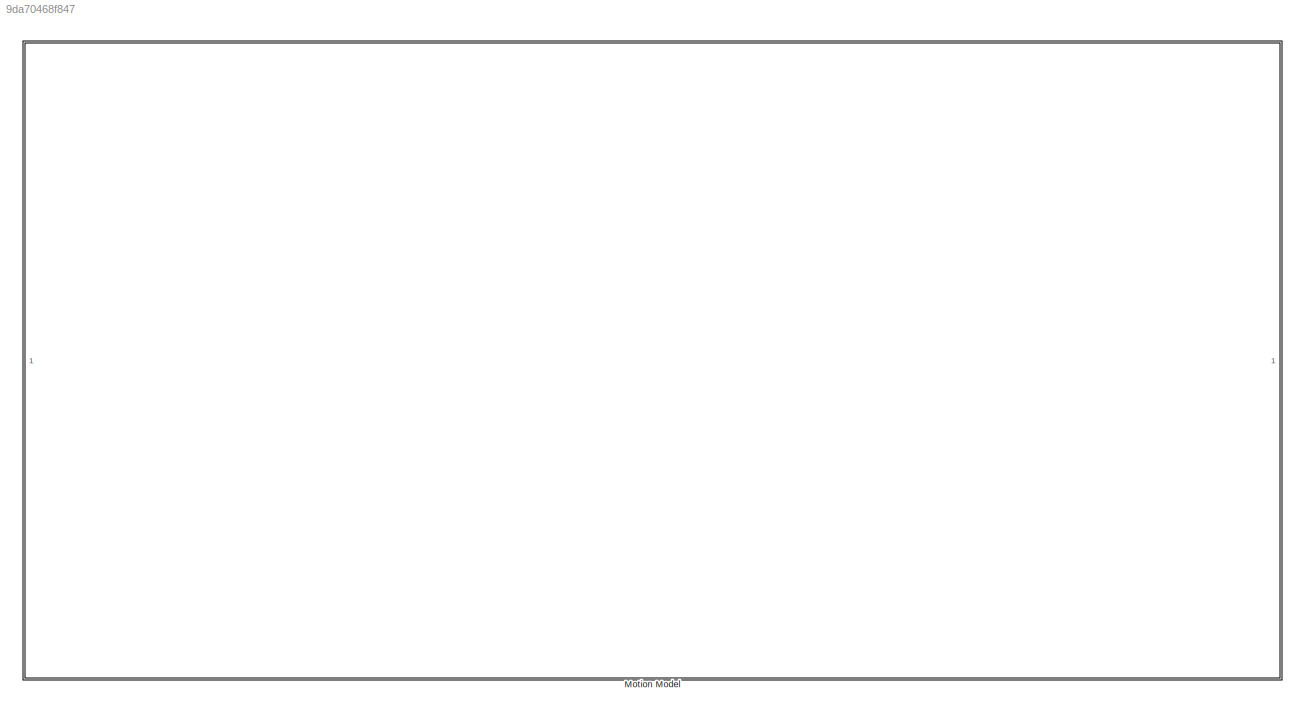
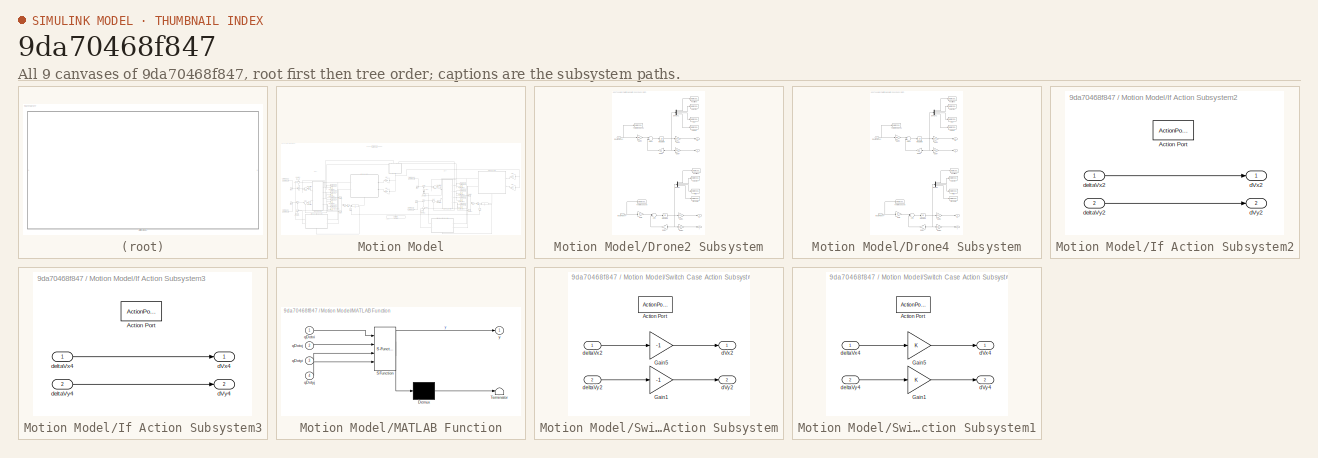
[diagram: thumbnail index - all 9 canvases of the model, root first then tree order]
MODEL slx_9da70468f847
KIND model
CONFIG AbsTol = auto
CONFIG EnableMultiTasking = off
CONFIG FixedStep = auto
CONFIG MaxStep = auto
CONFIG MinStep = auto
CONFIG RelTol = 1e-3
CONFIG SampleTimeConstraint = Unconstrained
CONFIG Solver = VariableStepAuto
CONFIG SolverName = VariableStepAuto
CONFIG StartTime = tStart 
CONFIG StopTime = tFinal
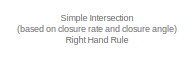
[diagram: Motion Model - part 1/6, top center region]
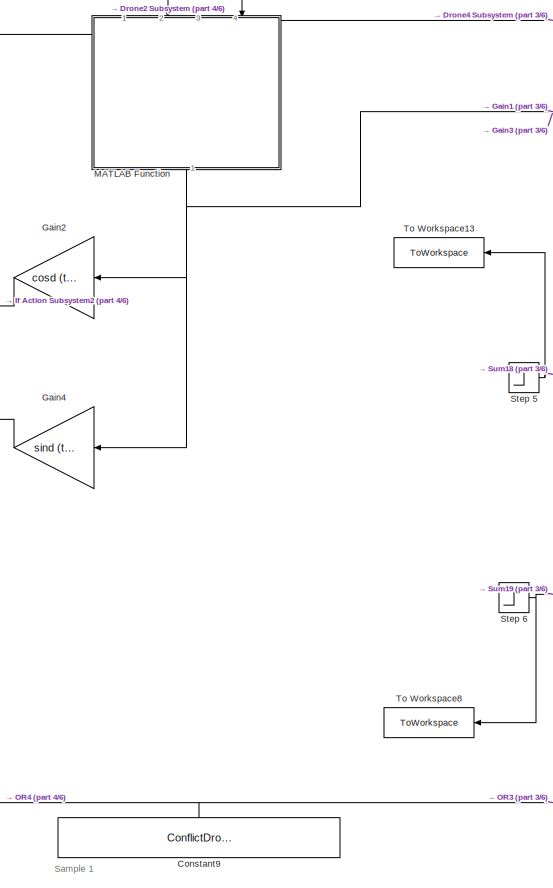
[diagram: Motion Model - part 2/6, central region]
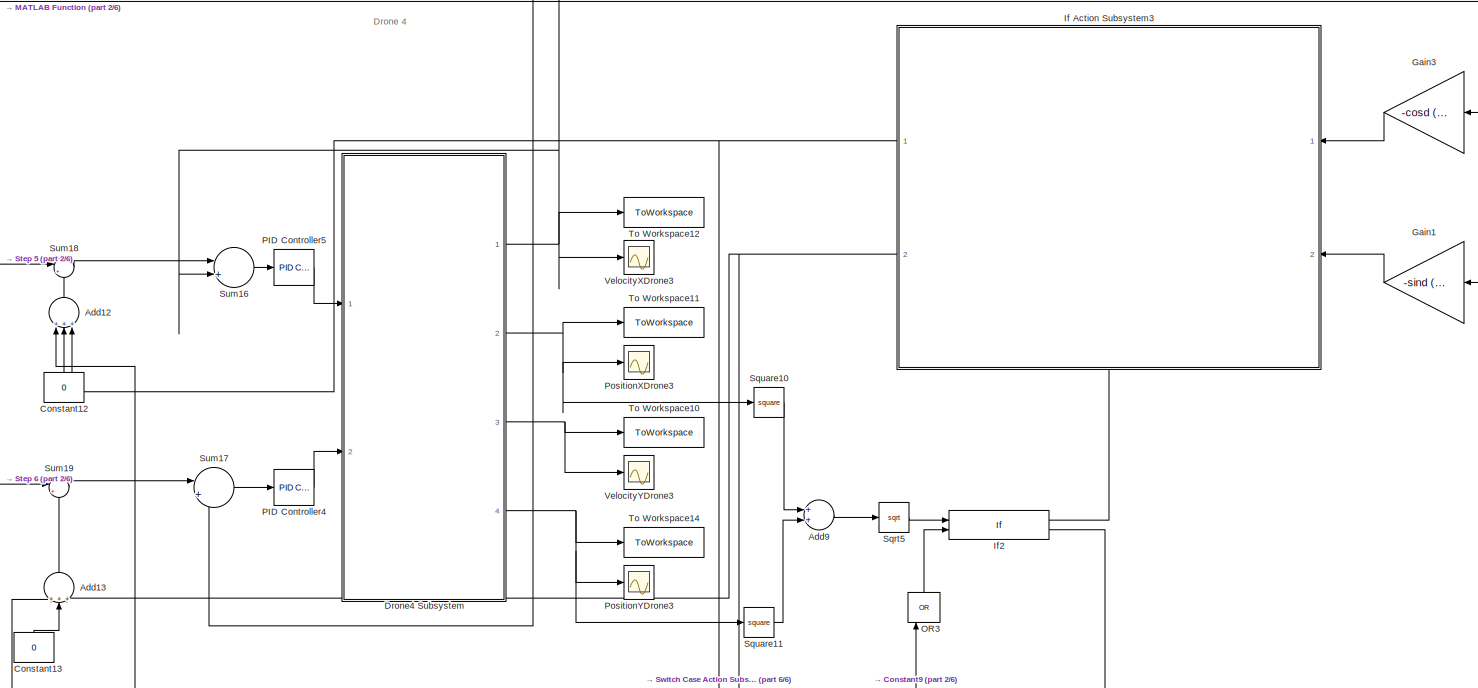
[diagram: Motion Model - part 3/6, middle right region]
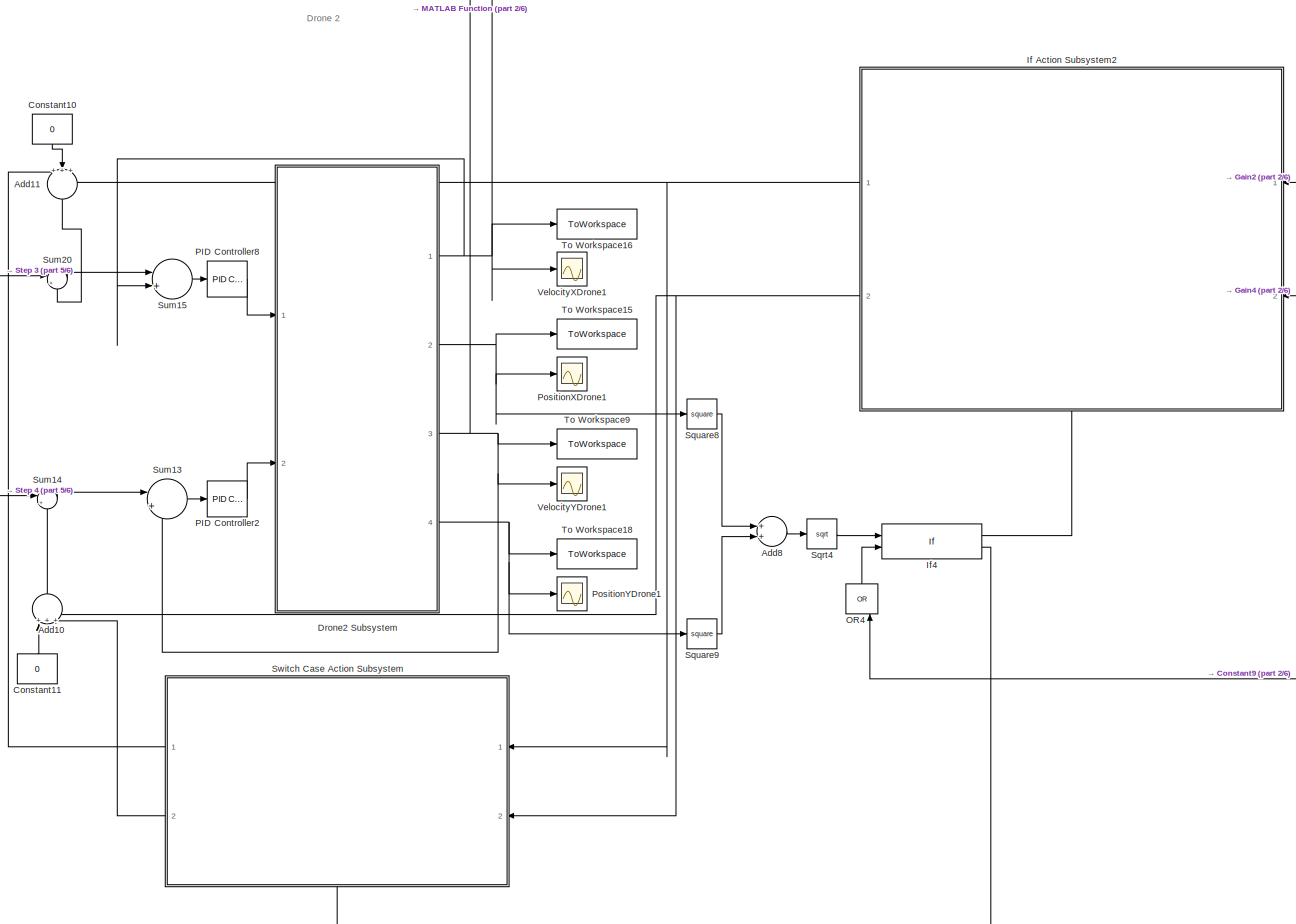
[diagram: Motion Model - part 4/6, middle left region]
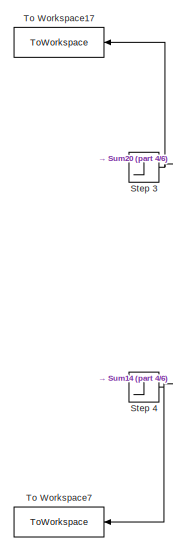
[diagram: Motion Model - part 5/6, middle left region]
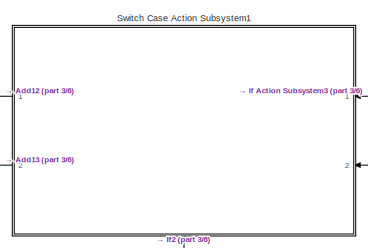
[diagram: Motion Model - part 6/6, bottom right region]
BLOCK [SubSystem] Motion Model
  Ports = []
  RequestExecContextInheritance = off
BLOCK [Sum] Motion Model/Add10
  InputSameDT = off
  Inputs = +++
  OutDataTypeStr = Inherit: Inherit via internal rule
  Ports = [3, 1]
  SaturateOnIntegerOverflow = off
BLOCK [Sum] Motion Model/Add11
  InputSameDT = off
  Inputs = +++
  OutDataTypeStr = Inherit: Inherit via internal rule
  Ports = [3, 1]
  SaturateOnIntegerOverflow = off
BLOCK [Sum] Motion Model/Add12
  InputSameDT = off
  Inputs = +++
  OutDataTypeStr = Inherit: Inherit via internal rule
  Ports = [3, 1]
  SaturateOnIntegerOverflow = off
BLOCK [Sum] Motion Model/Add13
  InputSameDT = off
  Inputs = +++
  OutDataTypeStr = Inherit: Inherit via internal rule
  Ports = [3, 1]
  SaturateOnIntegerOverflow = off
BLOCK [Sum] Motion Model/Add8
  InputSameDT = off
  OutDataTypeStr = Inherit: Inherit via internal rule
  Ports = [2, 1]
  SaturateOnIntegerOverflow = off
BLOCK [Sum] Motion Model/Add9
  InputSameDT = off
  OutDataTypeStr = Inherit: Inherit via internal rule
  Ports = [2, 1]
  SaturateOnIntegerOverflow = off
BLOCK [Constant] Motion Model/Constant10
  Value = 0
BLOCK [Constant] Motion Model/Constant11
  Value = 0
BLOCK [Constant] Motion Model/Constant12
  Value = 0
BLOCK [Constant] Motion Model/Constant13
  Value = 0
BLOCK [Constant] Motion Model/Constant9
  Value = ConflictDrone2andDrone4
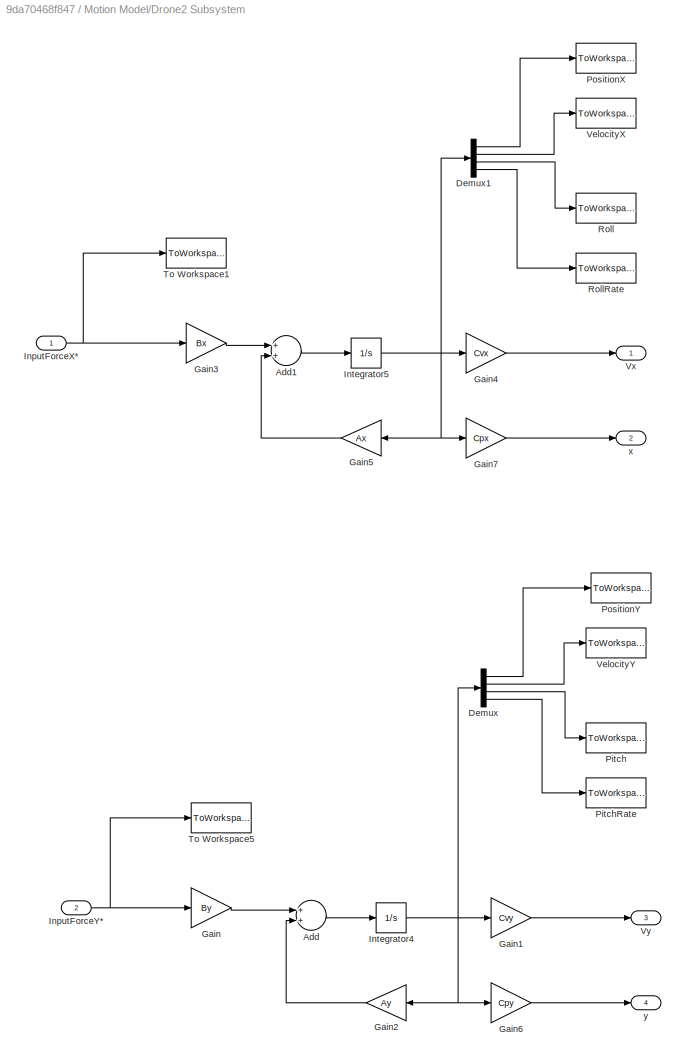
BLOCK [SubSystem] Motion Model/Drone2 Subsystem
  Ports = [2, 4]
  RequestExecContextInheritance = off
BLOCK [Sum] Motion Model/Drone2 Subsystem/Add
  InputSameDT = off
  OutDataTypeStr = Inherit: Inherit via internal rule
  Ports = [2, 1]
  SaturateOnIntegerOverflow = off
BLOCK [Sum] Motion Model/Drone2 Subsystem/Add1
  InputSameDT = off
  OutDataTypeStr = Inherit: Inherit via internal rule
  Ports = [2, 1]
  SaturateOnIntegerOverflow = off
BLOCK [Demux] Motion Model/Drone2 Subsystem/Demux
  DisplayOption = bar
  Ports = [1, 4]
BLOCK [Demux] Motion Model/Drone2 Subsystem/Demux1
  DisplayOption = bar
  Ports = [1, 4]
BLOCK [Gain] Motion Model/Drone2 Subsystem/Gain
  Gain = By
  Multiplication = Matrix(K*u)
  OutDataTypeStr = Inherit: Inherit via internal rule
  ParamDataTypeStr = Inherit: Inherit via internal rule
  SaturateOnIntegerOverflow = off
BLOCK [Gain] Motion Model/Drone2 Subsystem/Gain1
  Gain = Cvy
  Multiplication = Matrix(K*u)
  OutDataTypeStr = Inherit: Inherit via internal rule
  ParamDataTypeStr = Inherit: Inherit via internal rule
  SaturateOnIntegerOverflow = off
BLOCK [Gain] Motion Model/Drone2 Subsystem/Gain2
  Gain = Ay
  Multiplication = Matrix(K*u)
  OutDataTypeStr = Inherit: Inherit via internal rule
  ParamDataTypeStr = Inherit: Inherit via internal rule
  SaturateOnIntegerOverflow = off
BLOCK [Gain] Motion Model/Drone2 Subsystem/Gain3
  Gain = Bx
  Multiplication = Matrix(K*u)
  OutDataTypeStr = Inherit: Inherit via internal rule
  ParamDataTypeStr = Inherit: Inherit via internal rule
  SaturateOnIntegerOverflow = off
BLOCK [Gain] Motion Model/Drone2 Subsystem/Gain4
  Gain = Cvx
  Multiplication = Matrix(K*u)
  OutDataTypeStr = Inherit: Inherit via internal rule
  ParamDataTypeStr = Inherit: Inherit via internal rule
  SaturateOnIntegerOverflow = off
BLOCK [Gain] Motion Model/Drone2 Subsystem/Gain5
  Gain = Ax
  Multiplication = Matrix(K*u)
  OutDataTypeStr = Inherit: Inherit via internal rule
  ParamDataTypeStr = Inherit: Inherit via internal rule
  SaturateOnIntegerOverflow = off
BLOCK [Gain] Motion Model/Drone2 Subsystem/Gain6
  Gain = Cpy
  Multiplication = Matrix(K*u)
  OutDataTypeStr = Inherit: Inherit via internal rule
  ParamDataTypeStr = Inherit: Inherit via internal rule
  SaturateOnIntegerOverflow = off
BLOCK [Gain] Motion Model/Drone2 Subsystem/Gain7
  Gain = Cpx
  Multiplication = Matrix(K*u)
  OutDataTypeStr = Inherit: Inherit via internal rule
  ParamDataTypeStr = Inherit: Inherit via internal rule
  SaturateOnIntegerOverflow = off
BLOCK [Inport] Motion Model/Drone2 Subsystem/InputForceX*
  IconDisplay = Port number
BLOCK [Inport] Motion Model/Drone2 Subsystem/InputForceY* 
  IconDisplay = Port number
  Port = 2
BLOCK [Integrator] Motion Model/Drone2 Subsystem/Integrator4
  InitialCondition = Y20
  Ports = [1, 1]
BLOCK [Integrator] Motion Model/Drone2 Subsystem/Integrator5
  InitialCondition = X20
  Ports = [1, 1]
BLOCK [ToWorkspace] Motion Model/Drone2 Subsystem/Pitch
  FixptAsFi = on
  MaxDataPoints = inf
  Ports = [1]
  SampleTime = -1
  Save2DSignal = 3-D array (concatenate along third dimension)
  VariableName = Theta2
BLOCK [ToWorkspace] Motion Model/Drone2 Subsystem/PitchRate
  FixptAsFi = on
  MaxDataPoints = inf
  Ports = [1]
  SampleTime = -1
  Save2DSignal = 3-D array (concatenate along third dimension)
  VariableName = ThetaDot2
BLOCK [ToWorkspace] Motion Model/Drone2 Subsystem/PositionX
  FixptAsFi = on
  MaxDataPoints = inf
  Ports = [1]
  SampleTime = -1
  Save2DSignal = 3-D array (concatenate along third dimension)
  VariableName = x2
BLOCK [ToWorkspace] Motion Model/Drone2 Subsystem/PositionY
  FixptAsFi = on
  MaxDataPoints = inf
  Ports = [1]
  SampleTime = -1
  Save2DSignal = 3-D array (concatenate along third dimension)
  VariableName = y2
BLOCK [ToWorkspace] Motion Model/Drone2 Subsystem/Roll
  FixptAsFi = on
  MaxDataPoints = inf
  Ports = [1]
  SampleTime = -1
  Save2DSignal = 3-D array (concatenate along third dimension)
  VariableName = Psi2
BLOCK [ToWorkspace] Motion Model/Drone2 Subsystem/RollRate
  FixptAsFi = on
  MaxDataPoints = inf
  Ports = [1]
  SampleTime = -1
  Save2DSignal = 3-D array (concatenate along third dimension)
  VariableName = PsiDot2
BLOCK [ToWorkspace] Motion Model/Drone2 Subsystem/To Workspace1
  FixptAsFi = on
  MaxDataPoints = inf
  Ports = [1]
  SampleTime = -1
  Save2DSignal = 3-D array (concatenate along third dimension)
  VariableName = RollReference2
BLOCK [ToWorkspace] Motion Model/Drone2 Subsystem/To Workspace5
  FixptAsFi = on
  MaxDataPoints = inf
  Ports = [1]
  SampleTime = -1
  Save2DSignal = 3-D array (concatenate along third dimension)
  VariableName = PitchReference2
BLOCK [ToWorkspace] Motion Model/Drone2 Subsystem/VelocityX
  FixptAsFi = on
  MaxDataPoints = inf
  Ports = [1]
  SampleTime = -1
  Save2DSignal = 3-D array (concatenate along third dimension)
  VariableName = vx2
BLOCK [ToWorkspace] Motion Model/Drone2 Subsystem/VelocityY
  FixptAsFi = on
  MaxDataPoints = inf
  Ports = [1]
  SampleTime = -1
  Save2DSignal = 3-D array (concatenate along third dimension)
  VariableName = vy2
BLOCK [Outport] Motion Model/Drone2 Subsystem/Vx
  IconDisplay = Port number
BLOCK [Outport] Motion Model/Drone2 Subsystem/Vy
  IconDisplay = Port number
  Port = 3
BLOCK [Outport] Motion Model/Drone2 Subsystem/x
  IconDisplay = Port number
  Port = 2
BLOCK [Outport] Motion Model/Drone2 Subsystem/y
  IconDisplay = Port number
  Port = 4
BLOCK [SubSystem] Motion Model/Drone4 Subsystem
  Ports = [2, 4]
  RequestExecContextInheritance = off
BLOCK [Sum] Motion Model/Drone4 Subsystem/Add
  InputSameDT = off
  OutDataTypeStr = Inherit: Inherit via internal rule
  Ports = [2, 1]
  SaturateOnIntegerOverflow = off
BLOCK [Sum] Motion Model/Drone4 Subsystem/Add1
  InputSameDT = off
  OutDataTypeStr = Inherit: Inherit via internal rule
  Ports = [2, 1]
  SaturateOnIntegerOverflow = off
BLOCK [Demux] Motion Model/Drone4 Subsystem/Demux
  DisplayOption = bar
  Ports = [1, 4]
BLOCK [Demux] Motion Model/Drone4 Subsystem/Demux1
  DisplayOption = bar
  Ports = [1, 4]
BLOCK [Gain] Motion Model/Drone4 Subsystem/Gain
  Gain = By
  Multiplication = Matrix(K*u)
  OutDataTypeStr = Inherit: Inherit via internal rule
  ParamDataTypeStr = Inherit: Inherit via internal rule
  SaturateOnIntegerOverflow = off
BLOCK [Gain] Motion Model/Drone4 Subsystem/Gain1
  Gain = Cvy
  Multiplication = Matrix(K*u)
  OutDataTypeStr = Inherit: Inherit via internal rule
  ParamDataTypeStr = Inherit: Inherit via internal rule
  SaturateOnIntegerOverflow = off
BLOCK [Gain] Motion Model/Drone4 Subsystem/Gain2
  Gain = Ay
  Multiplication = Matrix(K*u)
  OutDataTypeStr = Inherit: Inherit via internal rule
  ParamDataTypeStr = Inherit: Inherit via internal rule
  SaturateOnIntegerOverflow = off
BLOCK [Gain] Motion Model/Drone4 Subsystem/Gain3
  Gain = Bx
  Multiplication = Matrix(K*u)
  OutDataTypeStr = Inherit: Inherit via internal rule
  ParamDataTypeStr = Inherit: Inherit via internal rule
  SaturateOnIntegerOverflow = off
BLOCK [Gain] Motion Model/Drone4 Subsystem/Gain4
  Gain = Cvx
  Multiplication = Matrix(K*u)
  OutDataTypeStr = Inherit: Inherit via internal rule
  ParamDataTypeStr = Inherit: Inherit via internal rule
  SaturateOnIntegerOverflow = off
BLOCK [Gain] Motion Model/Drone4 Subsystem/Gain5
  Gain = Ax
  Multiplication = Matrix(K*u)
  OutDataTypeStr = Inherit: Inherit via internal rule
  ParamDataTypeStr = Inherit: Inherit via internal rule
  SaturateOnIntegerOverflow = off
BLOCK [Gain] Motion Model/Drone4 Subsystem/Gain6
  Gain = Cpy
  Multiplication = Matrix(K*u)
  OutDataTypeStr = Inherit: Inherit via internal rule
  ParamDataTypeStr = Inherit: Inherit via internal rule
  SaturateOnIntegerOverflow = off
BLOCK [Gain] Motion Model/Drone4 Subsystem/Gain7
  Gain = Cpx
  Multiplication = Matrix(K*u)
  OutDataTypeStr = Inherit: Inherit via internal rule
  ParamDataTypeStr = Inherit: Inherit via internal rule
  SaturateOnIntegerOverflow = off
BLOCK [Inport] Motion Model/Drone4 Subsystem/InputForceX*
  IconDisplay = Port number
BLOCK [Inport] Motion Model/Drone4 Subsystem/InputForceY* 
  IconDisplay = Port number
  Port = 2
BLOCK [Integrator] Motion Model/Drone4 Subsystem/Integrator4
  InitialCondition = Y40
  Ports = [1, 1]
BLOCK [Integrator] Motion Model/Drone4 Subsystem/Integrator5
  InitialCondition = X40
  Ports = [1, 1]
BLOCK [ToWorkspace] Motion Model/Drone4 Subsystem/Pitch
  FixptAsFi = on
  MaxDataPoints = inf
  Ports = [1]
  SampleTime = -1
  Save2DSignal = 3-D array (concatenate along third dimension)
  VariableName = Theta
BLOCK [ToWorkspace] Motion Model/Drone4 Subsystem/PitchRate
  FixptAsFi = on
  MaxDataPoints = inf
  Ports = [1]
  SampleTime = -1
  Save2DSignal = 3-D array (concatenate along third dimension)
  VariableName = ThetaDot
BLOCK [ToWorkspace] Motion Model/Drone4 Subsystem/PositionX
  FixptAsFi = on
  MaxDataPoints = inf
  Ports = [1]
  SampleTime = -1
  Save2DSignal = 3-D array (concatenate along third dimension)
  VariableName = x
BLOCK [ToWorkspace] Motion Model/Drone4 Subsystem/PositionY
  FixptAsFi = on
  MaxDataPoints = inf
  Ports = [1]
  SampleTime = -1
  Save2DSignal = 3-D array (concatenate along third dimension)
  VariableName = y
BLOCK [ToWorkspace] Motion Model/Drone4 Subsystem/Roll
  FixptAsFi = on
  MaxDataPoints = inf
  Ports = [1]
  SampleTime = -1
  Save2DSignal = 3-D array (concatenate along third dimension)
  VariableName = Psi
BLOCK [ToWorkspace] Motion Model/Drone4 Subsystem/RollRate
  FixptAsFi = on
  MaxDataPoints = inf
  Ports = [1]
  SampleTime = -1
  Save2DSignal = 3-D array (concatenate along third dimension)
  VariableName = PsiDot
BLOCK [ToWorkspace] Motion Model/Drone4 Subsystem/To Workspace1
  FixptAsFi = on
  MaxDataPoints = inf
  Ports = [1]
  SampleTime = -1
  Save2DSignal = 3-D array (concatenate along third dimension)
  VariableName = RollReference
BLOCK [ToWorkspace] Motion Model/Drone4 Subsystem/To Workspace5
  FixptAsFi = on
  MaxDataPoints = inf
  Ports = [1]
  SampleTime = -1
  Save2DSignal = 3-D array (concatenate along third dimension)
  VariableName = PitchReference
BLOCK [ToWorkspace] Motion Model/Drone4 Subsystem/VelocityX
  FixptAsFi = on
  MaxDataPoints = inf
  Ports = [1]
  SampleTime = -1
  Save2DSignal = 3-D array (concatenate along third dimension)
  VariableName = vx
BLOCK [ToWorkspace] Motion Model/Drone4 Subsystem/VelocityY
  FixptAsFi = on
  MaxDataPoints = inf
  Ports = [1]
  SampleTime = -1
  Save2DSignal = 3-D array (concatenate along third dimension)
  VariableName = vy
BLOCK [Outport] Motion Model/Drone4 Subsystem/Vx
  IconDisplay = Port number
BLOCK [Outport] Motion Model/Drone4 Subsystem/Vy
  IconDisplay = Port number
  Port = 3
BLOCK [Outport] Motion Model/Drone4 Subsystem/x
  IconDisplay = Port number
  Port = 2
BLOCK [Outport] Motion Model/Drone4 Subsystem/y
  IconDisplay = Port number
  Port = 4
BLOCK [Gain] Motion Model/Gain1
  Gain = -sind (theta4)
  OutDataTypeStr = Inherit: Inherit via internal rule
  ParamDataTypeStr = Inherit: Inherit via internal rule
  SaturateOnIntegerOverflow = off
BLOCK [Gain] Motion Model/Gain2
  Gain = cosd (theta2)
  OutDataTypeStr = Inherit: Inherit via internal rule
  ParamDataTypeStr = Inherit: Inherit via internal rule
  SaturateOnIntegerOverflow = off
BLOCK [Gain] Motion Model/Gain3
  Gain = -cosd (theta4)
  OutDataTypeStr = Inherit: Inherit via internal rule
  ParamDataTypeStr = Inherit: Inherit via internal rule
  SaturateOnIntegerOverflow = off
BLOCK [Gain] Motion Model/Gain4
  Gain = sind (theta2)
  OutDataTypeStr = Inherit: Inherit via internal rule
  ParamDataTypeStr = Inherit: Inherit via internal rule
  SaturateOnIntegerOverflow = off
BLOCK [SubSystem] Motion Model/If Action Subsystem2
  Ports = [2, 2, 0, 0, 0, 0, 0, 1]
  RequestExecContextInheritance = off
  TreatAsAtomicUnit = on
BLOCK [ActionPort] Motion Model/If Action Subsystem2/Action Port
  ActionType = then
BLOCK [Outport] Motion Model/If Action Subsystem2/dVx2
  IconDisplay = Port number
BLOCK [Outport] Motion Model/If Action Subsystem2/dVy2
  IconDisplay = Port number
  Port = 2
BLOCK [Inport] Motion Model/If Action Subsystem2/deltaVx2
  IconDisplay = Port number
BLOCK [Inport] Motion Model/If Action Subsystem2/deltaVy2
  IconDisplay = Port number
  Port = 2
BLOCK [SubSystem] Motion Model/If Action Subsystem3
  Ports = [2, 2, 0, 0, 0, 0, 0, 1]
  RequestExecContextInheritance = off
  TreatAsAtomicUnit = on
BLOCK [ActionPort] Motion Model/If Action Subsystem3/Action Port
  ActionType = then
BLOCK [Outport] Motion Model/If Action Subsystem3/dVx4
  IconDisplay = Port number
BLOCK [Outport] Motion Model/If Action Subsystem3/dVy4
  IconDisplay = Port number
  Port = 2
BLOCK [Inport] Motion Model/If Action Subsystem3/deltaVx4
  IconDisplay = Port number
BLOCK [Inport] Motion Model/If Action Subsystem3/deltaVy4
  IconDisplay = Port number
  Port = 2
BLOCK [If] Motion Model/If2
  ElseIfExpressions = (u1 > R)&(u2 == 1)
  IfExpression = (u1 <= R)&(u2 == 1)
  NumInputs = 2
  Ports = [2, 2]
  ShowElse = off
BLOCK [If] Motion Model/If4
  ElseIfExpressions = (u1 > R)&(u2 == 1)
  IfExpression = (u1 <= R)&(u2 == 1)
  NumInputs = 2
  Ports = [2, 2]
  ShowElse = off
BLOCK [SubSystem] Motion Model/MATLAB Function
  ErrorFcn = Stateflow.Translate.translate
  PermitHierarchicalResolution = ExplicitOnly
  Ports = [4, 1]
  RequestExecContextInheritance = off
  SFBlockType = MATLAB Function
  TreatAsAtomicUnit = on
BLOCK [Demux] Motion Model/MATLAB Function/ Demux 
  Outputs = 1
  Ports = [1, 1]
BLOCK [S-Function] Motion Model/MATLAB Function/ SFunction 
  EnableBusSupport = on
  FunctionName = sf_sfun
  PortCounts = [4 2]
  Ports = [4, 2]
  SFcnIsStateOwnerBlock = off
  SFunctionDeploymentMode = off
  Tag = Stateflow S-Function NetworkModelSimpleIntersectionCRCA 2
BLOCK [Terminator] Motion Model/MATLAB Function/ Terminator 
BLOCK [Inport] Motion Model/MATLAB Function/qDotxi
  IconDisplay = Port number
BLOCK [Inport] Motion Model/MATLAB Function/qDotxj
  IconDisplay = Port number
  Port = 2
BLOCK [Inport] Motion Model/MATLAB Function/qDotyi
  IconDisplay = Port number
  Port = 3
BLOCK [Inport] Motion Model/MATLAB Function/qDotyj
  IconDisplay = Port number
  Port = 4
BLOCK [Outport] Motion Model/MATLAB Function/y
  IconDisplay = Port number
BLOCK [Logic] Motion Model/OR3
  AllPortsSameDT = off
  IconShape = distinctive
  Inputs = 3
  Operator = OR
  OutDataTypeStr = 'double'
  Ports = [3, 1]
BLOCK [Logic] Motion Model/OR4
  AllPortsSameDT = off
  IconShape = distinctive
  Inputs = 3
  Operator = OR
  OutDataTypeStr = 'double'
  Ports = [3, 1]
BLOCK [Reference] Motion Model/PID Controller2  REF=simulink/Continuous/PID Controller
  Ports = [1, 1]
  SourceBlock = simulink/Continuous/PID Controller
  SourceProductBaseCode = SL
  SourceProductName = Simulink
  SourceType = PID 1dof
BLOCK [Reference] Motion Model/PID Controller4  REF=simulink/Continuous/PID Controller
  Ports = [1, 1]
  SourceBlock = simulink/Continuous/PID Controller
  SourceProductBaseCode = SL
  SourceProductName = Simulink
  SourceType = PID 1dof
BLOCK [Reference] Motion Model/PID Controller5  REF=simulink/Continuous/PID Controller
  Ports = [1, 1]
  SourceBlock = simulink/Continuous/PID Controller
  SourceProductBaseCode = SL
  SourceProductName = Simulink
  SourceType = PID 1dof
BLOCK [Reference] Motion Model/PID Controller8  REF=simulink/Continuous/PID Controller
  Ports = [1, 1]
  SourceBlock = simulink/Continuous/PID Controller
  SourceProductBaseCode = SL
  SourceProductName = Simulink
  SourceType = PID 1dof
BLOCK [Scope] Motion Model/PositionXDrone1
  Floating = off
  NumInputPorts = 1
  Ports = [1]
  ScopeSpecificationString = Simulink.scopes.TimeScopeBlockCfg('CurrentConfiguration', extmgr.ConfigurationSet(extmgr.Configuration('Core','General UI',true),extmgr.Configuration('Core','Source UI',true),extmgr.Configuration('Sources','WiredSimulink',true,'DataLoggingVariableName','ScopeData1'),extmgr.Configuration('Visuals','Time Domain',true,'SerializedDisplays',{struct('MinYLimReal','-13.93778','MaxYLimReal','12.65975','YL...<+1455ch>
BLOCK [Scope] Motion Model/PositionXDrone3
  Floating = off
  NumInputPorts = 1
  Ports = [1]
  ScopeSpecificationString = Simulink.scopes.TimeScopeBlockCfg('CurrentConfiguration', extmgr.ConfigurationSet(extmgr.Configuration('Core','General UI',true),extmgr.Configuration('Core','Source UI',true),extmgr.Configuration('Sources','WiredSimulink',true,'DataLoggingVariableName','ScopeData2'),extmgr.Configuration('Visuals','Time Domain',true,'SerializedDisplays',{struct('MinYLimReal','-23.95767','MaxYLimReal','115.61905','Y...<+1459ch>
BLOCK [Scope] Motion Model/PositionYDrone1
  Floating = off
  NumInputPorts = 1
  Ports = [1]
  ScopeSpecificationString = Simulink.scopes.TimeScopeBlockCfg('CurrentConfiguration', extmgr.ConfigurationSet(extmgr.Configuration('Core','General UI',true),extmgr.Configuration('Core','Source UI',true),extmgr.Configuration('Sources','WiredSimulink',true,'DataLoggingVariableName','ScopeData3'),extmgr.Configuration('Visuals','Time Domain',true,'SerializedDisplays',{struct('MinYLimReal','-12488.44039','MaxYLimReal','112495.937...<+1759ch>
BLOCK [Scope] Motion Model/PositionYDrone3
  Floating = off
  NumInputPorts = 1
  Ports = [1]
  ScopeSpecificationString = Simulink.scopes.TimeScopeBlockCfg('CurrentConfiguration', extmgr.ConfigurationSet(extmgr.Configuration('Core','General UI',true),extmgr.Configuration('Core','Source UI',true),extmgr.Configuration('Sources','WiredSimulink',true,'DataLoggingVariableName','ScopeData4'),extmgr.Configuration('Visuals','Time Domain',true,'SerializedDisplays',{struct('MinYLimReal','-115.61905','MaxYLimReal','23.95767','Y...<+1461ch>
BLOCK [Sqrt] Motion Model/Sqrt4
BLOCK [Sqrt] Motion Model/Sqrt5
BLOCK [Math] Motion Model/Square10
  Operator = square
  Ports = [1, 1]
BLOCK [Math] Motion Model/Square11
  Operator = square
  Ports = [1, 1]
BLOCK [Math] Motion Model/Square8
  Operator = square
  Ports = [1, 1]
BLOCK [Math] Motion Model/Square9
  Operator = square
  Ports = [1, 1]
BLOCK [Step] Motion Model/Step 3
  After = VelocityStarX2
  SampleTime = 0
  Time = 0
BLOCK [Step] Motion Model/Step 4
  After = VelocityStarY2
  SampleTime = 0
  Time = 0
BLOCK [Step] Motion Model/Step 5
  After = VelocityStarX4
  SampleTime = 0
  Time = 0
BLOCK [Step] Motion Model/Step 6
  After = VelocityStarY4
  SampleTime = 0
  Time = 0
BLOCK [Sum] Motion Model/Sum13
  IconShape = round
  InputSameDT = off
  Inputs = |+-
  OutDataTypeStr = Inherit: Inherit via internal rule
  Ports = [2, 1]
  SaturateOnIntegerOverflow = off
BLOCK [Sum] Motion Model/Sum14
  IconShape = round
  InputSameDT = off
  Inputs = |+-
  OutDataTypeStr = Inherit: Inherit via internal rule
  Ports = [2, 1]
  SaturateOnIntegerOverflow = off
BLOCK [Sum] Motion Model/Sum15
  IconShape = round
  InputSameDT = off
  Inputs = |+-
  OutDataTypeStr = Inherit: Inherit via internal rule
  Ports = [2, 1]
  SaturateOnIntegerOverflow = off
BLOCK [Sum] Motion Model/Sum16
  IconShape = round
  InputSameDT = off
  Inputs = |+-
  OutDataTypeStr = Inherit: Inherit via internal rule
  Ports = [2, 1]
  SaturateOnIntegerOverflow = off
BLOCK [Sum] Motion Model/Sum17
  IconShape = round
  InputSameDT = off
  Inputs = |+-
  OutDataTypeStr = Inherit: Inherit via internal rule
  Ports = [2, 1]
  SaturateOnIntegerOverflow = off
BLOCK [Sum] Motion Model/Sum18
  IconShape = round
  InputSameDT = off
  Inputs = |+-
  OutDataTypeStr = Inherit: Inherit via internal rule
  Ports = [2, 1]
  SaturateOnIntegerOverflow = off
BLOCK [Sum] Motion Model/Sum19
  IconShape = round
  InputSameDT = off
  Inputs = |+-
  OutDataTypeStr = Inherit: Inherit via internal rule
  Ports = [2, 1]
  SaturateOnIntegerOverflow = off
BLOCK [Sum] Motion Model/Sum20
  IconShape = round
  InputSameDT = off
  Inputs = |+-
  OutDataTypeStr = Inherit: Inherit via internal rule
  Ports = [2, 1]
  SaturateOnIntegerOverflow = off
BLOCK [SubSystem] Motion Model/Switch Case Action Subsystem
  Ports = [2, 2, 0, 0, 0, 0, 0, 1]
  RequestExecContextInheritance = off
  TreatAsAtomicUnit = on
BLOCK [ActionPort] Motion Model/Switch Case Action Subsystem/Action Port
  ActionType = elseif
BLOCK [Gain] Motion Model/Switch Case Action Subsystem/Gain1
  Gain = -1
  OutDataTypeStr = Inherit: Inherit via internal rule
  ParamDataTypeStr = Inherit: Inherit via internal rule
  SaturateOnIntegerOverflow = off
BLOCK [Gain] Motion Model/Switch Case Action Subsystem/Gain5
  Gain = -1
  OutDataTypeStr = Inherit: Inherit via internal rule
  ParamDataTypeStr = Inherit: Inherit via internal rule
  SaturateOnIntegerOverflow = off
BLOCK [Outport] Motion Model/Switch Case Action Subsystem/dVx2
  IconDisplay = Port number
BLOCK [Outport] Motion Model/Switch Case Action Subsystem/dVy2
  IconDisplay = Port number
  Port = 2
BLOCK [Inport] Motion Model/Switch Case Action Subsystem/deltaVx2
  IconDisplay = Port number
BLOCK [Inport] Motion Model/Switch Case Action Subsystem/deltaVy2
  IconDisplay = Port number
  Port = 2
BLOCK [SubSystem] Motion Model/Switch Case Action Subsystem1
  Ports = [2, 2, 0, 0, 0, 0, 0, 1]
  RequestExecContextInheritance = off
  TreatAsAtomicUnit = on
BLOCK [ActionPort] Motion Model/Switch Case Action Subsystem1/Action Port
  ActionType = elseif
BLOCK [Gain] Motion Model/Switch Case Action Subsystem1/Gain1
  OutDataTypeStr = Inherit: Inherit via internal rule
  ParamDataTypeStr = Inherit: Inherit via internal rule
  SaturateOnIntegerOverflow = off
BLOCK [Gain] Motion Model/Switch Case Action Subsystem1/Gain5
  OutDataTypeStr = Inherit: Inherit via internal rule
  ParamDataTypeStr = Inherit: Inherit via internal rule
  SaturateOnIntegerOverflow = off
BLOCK [Outport] Motion Model/Switch Case Action Subsystem1/dVx4
  IconDisplay = Port number
BLOCK [Outport] Motion Model/Switch Case Action Subsystem1/dVy4
  IconDisplay = Port number
  Port = 2
BLOCK [Inport] Motion Model/Switch Case Action Subsystem1/deltaVx4
  IconDisplay = Port number
BLOCK [Inport] Motion Model/Switch Case Action Subsystem1/deltaVy4
  IconDisplay = Port number
  Port = 2
BLOCK [ToWorkspace] Motion Model/To Workspace10
  FixptAsFi = on
  MaxDataPoints = inf
  Ports = [1]
  SampleTime = -1
  Save2DSignal = 3-D array (concatenate along third dimension)
  VariableName = VelocityYDrone4
BLOCK [ToWorkspace] Motion Model/To Workspace11
  FixptAsFi = on
  MaxDataPoints = inf
  Ports = [1]
  SampleTime = -1
  Save2DSignal = 3-D array (concatenate along third dimension)
  VariableName = PositionXDrone4
BLOCK [ToWorkspace] Motion Model/To Workspace12
  FixptAsFi = on
  MaxDataPoints = inf
  Ports = [1]
  SampleTime = -1
  Save2DSignal = 3-D array (concatenate along third dimension)
  VariableName = VelocityXDrone4
BLOCK [ToWorkspace] Motion Model/To Workspace13
  FixptAsFi = on
  MaxDataPoints = inf
  Ports = [1]
  SampleTime = -1
  Save2DSignal = 3-D array (concatenate along third dimension)
  VariableName = VelocityStarX4
BLOCK [ToWorkspace] Motion Model/To Workspace14
  FixptAsFi = on
  MaxDataPoints = inf
  Ports = [1]
  SampleTime = -1
  Save2DSignal = 3-D array (concatenate along third dimension)
  VariableName = PositionYDrone4
BLOCK [ToWorkspace] Motion Model/To Workspace15
  FixptAsFi = on
  MaxDataPoints = inf
  Ports = [1]
  SampleTime = -1
  Save2DSignal = 3-D array (concatenate along third dimension)
  VariableName = PositionXDrone2
BLOCK [ToWorkspace] Motion Model/To Workspace16
  FixptAsFi = on
  MaxDataPoints = inf
  Ports = [1]
  SampleTime = -1
  Save2DSignal = 3-D array (concatenate along third dimension)
  VariableName = VelocityXDrone2
BLOCK [ToWorkspace] Motion Model/To Workspace17
  FixptAsFi = on
  MaxDataPoints = inf
  Ports = [1]
  SampleTime = -1
  Save2DSignal = 3-D array (concatenate along third dimension)
  VariableName = VelocityStarX2
BLOCK [ToWorkspace] Motion Model/To Workspace18
  FixptAsFi = on
  MaxDataPoints = inf
  Ports = [1]
  SampleTime = -1
  Save2DSignal = 3-D array (concatenate along third dimension)
  VariableName = PositionYDrone2
BLOCK [ToWorkspace] Motion Model/To Workspace7
  FixptAsFi = on
  MaxDataPoints = inf
  Ports = [1]
  SampleTime = -1
  Save2DSignal = 3-D array (concatenate along third dimension)
  VariableName = VelocityStarY2
BLOCK [ToWorkspace] Motion Model/To Workspace8
  FixptAsFi = on
  MaxDataPoints = inf
  Ports = [1]
  SampleTime = -1
  Save2DSignal = 3-D array (concatenate along third dimension)
  VariableName = VelocityStarY4
BLOCK [ToWorkspace] Motion Model/To Workspace9
  FixptAsFi = on
  MaxDataPoints = inf
  Ports = [1]
  SampleTime = -1
  Save2DSignal = 3-D array (concatenate along third dimension)
  VariableName = VelocityYDrone2
BLOCK [Scope] Motion Model/VelocityXDrone1
  Floating = off
  NumInputPorts = 1
  Ports = [1]
  ScopeSpecificationString = Simulink.scopes.TimeScopeBlockCfg('CurrentConfiguration', extmgr.ConfigurationSet(extmgr.Configuration('Core','General UI',true),extmgr.Configuration('Core','Source UI',true),extmgr.Configuration('Sources','WiredSimulink',true,'DataLoggingVariableName','ScopeData5'),extmgr.Configuration('Visuals','Time Domain',true,'SerializedDisplays',{struct('MinYLimReal','-0.0769','MaxYLimReal','-0.01503','YLab...<+1448ch>
BLOCK [Scope] Motion Model/VelocityXDrone3
  Floating = off
  NumInputPorts = 1
  Ports = [1]
  ScopeSpecificationString = Simulink.scopes.TimeScopeBlockCfg('CurrentConfiguration', extmgr.ConfigurationSet(extmgr.Configuration('Core','General UI',true),extmgr.Configuration('Core','Source UI',true),extmgr.Configuration('Sources','WiredSimulink',true,'DataLoggingVariableName','ScopeData6'),extmgr.Configuration('Visuals','Time Domain',true,'SerializedDisplays',{struct('MinYLimReal','0.09945','MaxYLimReal','0.16564','YLabe...<+1447ch>
BLOCK [Scope] Motion Model/VelocityYDrone1
  Floating = off
  NumInputPorts = 1
  Ports = [1]
  ScopeSpecificationString = Simulink.scopes.TimeScopeBlockCfg('CurrentConfiguration', extmgr.ConfigurationSet(extmgr.Configuration('Core','General UI',true),extmgr.Configuration('Core','Source UI',true),extmgr.Configuration('Sources','WiredSimulink',true,'DataLoggingVariableName','ScopeData7'),extmgr.Configuration('Visuals','Time Domain',true,'SerializedDisplays',{struct('MinYLimReal','-9.15911','MaxYLimReal','11.72136','YLa...<+1730ch>
BLOCK [Scope] Motion Model/VelocityYDrone3
  Floating = off
  NumInputPorts = 1
  Ports = [1]
  ScopeSpecificationString = Simulink.scopes.TimeScopeBlockCfg('CurrentConfiguration', extmgr.ConfigurationSet(extmgr.Configuration('Core','General UI',true),extmgr.Configuration('Core','Source UI',true),extmgr.Configuration('Sources','WiredSimulink',true,'DataLoggingVariableName','ScopeData8'),extmgr.Configuration('Visuals','Time Domain',true,'SerializedDisplays',{struct('MinYLimReal','-0.23209','MaxYLimReal','0.02579','YLab...<+1449ch>
ANNOTATION Motion Model: Simple Intersection (based on closure rate and closure angle) Right Hand Rule
ANNOTATION Motion Model: Drone 2
ANNOTATION Motion Model: Drone 4
ANNOTATION Motion Model: Sample 1
LINE Motion Model/Add10:1 -> Motion Model/Sum14:2
LINE Motion Model/Add11:1 -> Motion Model/Sum20:2
LINE Motion Model/Add12:1 -> Motion Model/Sum18:2
LINE Motion Model/Add13:1 -> Motion Model/Sum19:2
LINE Motion Model/Add8:1 -> Motion Model/Sqrt4:1
LINE Motion Model/Add9:1 -> Motion Model/Sqrt5:1
LINE Motion Model/Constant10:1 -> Motion Model/Add11:2
LINE Motion Model/Constant11:1 -> Motion Model/Add10:1
LINE Motion Model/Constant12:1 -> Motion Model/Add12:2
LINE Motion Model/Constant13:1 -> Motion Model/Add13:2
NET Motion Model/Constant9:1 -> Motion Model/OR3:1, Motion Model/OR4:3
LINE Motion Model/Drone2 Subsystem/Add1:1 -> Motion Model/Drone2 Subsystem/Integrator5:1
LINE Motion Model/Drone2 Subsystem/Add:1 -> Motion Model/Drone2 Subsystem/Integrator4:1
LINE Motion Model/Drone2 Subsystem/Demux1:1 -> Motion Model/Drone2 Subsystem/PositionX:1
LINE Motion Model/Drone2 Subsystem/Demux1:2 -> Motion Model/Drone2 Subsystem/VelocityX:1
LINE Motion Model/Drone2 Subsystem/Demux1:3 -> Motion Model/Drone2 Subsystem/Roll:1
LINE Motion Model/Drone2 Subsystem/Demux1:4 -> Motion Model/Drone2 Subsystem/RollRate:1
LINE Motion Model/Drone2 Subsystem/Demux:1 -> Motion Model/Drone2 Subsystem/PositionY:1
LINE Motion Model/Drone2 Subsystem/Demux:2 -> Motion Model/Drone2 Subsystem/VelocityY:1
LINE Motion Model/Drone2 Subsystem/Demux:3 -> Motion Model/Drone2 Subsystem/Pitch:1
LINE Motion Model/Drone2 Subsystem/Demux:4 -> Motion Model/Drone2 Subsystem/PitchRate:1
LINE Motion Model/Drone2 Subsystem/Gain1:1 -> Motion Model/Drone2 Subsystem/Vy:1
LINE Motion Model/Drone2 Subsystem/Gain2:1 -> Motion Model/Drone2 Subsystem/Add:2
LINE Motion Model/Drone2 Subsystem/Gain3:1 -> Motion Model/Drone2 Subsystem/Add1:1
LINE Motion Model/Drone2 Subsystem/Gain4:1 -> Motion Model/Drone2 Subsystem/Vx:1
LINE Motion Model/Drone2 Subsystem/Gain5:1 -> Motion Model/Drone2 Subsystem/Add1:2
LINE Motion Model/Drone2 Subsystem/Gain6:1 -> Motion Model/Drone2 Subsystem/y:1
LINE Motion Model/Drone2 Subsystem/Gain7:1 -> Motion Model/Drone2 Subsystem/x:1
LINE Motion Model/Drone2 Subsystem/Gain:1 -> Motion Model/Drone2 Subsystem/Add:1
NET Motion Model/Drone2 Subsystem/InputForceX*:1 -> Motion Model/Drone2 Subsystem/Gain3:1, Motion Model/Drone2 Subsystem/To Workspace1:1
NET Motion Model/Drone2 Subsystem/InputForceY* :1 -> Motion Model/Drone2 Subsystem/Gain:1, Motion Model/Drone2 Subsystem/To Workspace5:1
NET Motion Model/Drone2 Subsystem/Integrator4:1 -> Motion Model/Drone2 Subsystem/Demux:1, Motion Model/Drone2 Subsystem/Gain1:1, Motion Model/Drone2 Subsystem/Gain2:1, Motion Model/Drone2 Subsystem/Gain6:1
NET Motion Model/Drone2 Subsystem/Integrator5:1 -> Motion Model/Drone2 Subsystem/Demux1:1, Motion Model/Drone2 Subsystem/Gain4:1, Motion Model/Drone2 Subsystem/Gain5:1, Motion Model/Drone2 Subsystem/Gain7:1
NET Motion Model/Drone2 Subsystem:1 -> Motion Model/MATLAB Function:1, Motion Model/Sum15:2, Motion Model/To Workspace16:1, Motion Model/VelocityXDrone1:1
NET Motion Model/Drone2 Subsystem:2 -> Motion Model/PositionXDrone1:1, Motion Model/Square8:1, Motion Model/To Workspace15:1
NET Motion Model/Drone2 Subsystem:3 -> Motion Model/MATLAB Function:2, Motion Model/Sum13:2, Motion Model/To Workspace9:1, Motion Model/VelocityYDrone1:1
NET Motion Model/Drone2 Subsystem:4 -> Motion Model/PositionYDrone1:1, Motion Model/Square9:1, Motion Model/To Workspace18:1
LINE Motion Model/Drone4 Subsystem/Add1:1 -> Motion Model/Drone4 Subsystem/Integrator5:1
LINE Motion Model/Drone4 Subsystem/Add:1 -> Motion Model/Drone4 Subsystem/Integrator4:1
LINE Motion Model/Drone4 Subsystem/Demux1:1 -> Motion Model/Drone4 Subsystem/PositionX:1
LINE Motion Model/Drone4 Subsystem/Demux1:2 -> Motion Model/Drone4 Subsystem/VelocityX:1
LINE Motion Model/Drone4 Subsystem/Demux1:3 -> Motion Model/Drone4 Subsystem/Roll:1
LINE Motion Model/Drone4 Subsystem/Demux1:4 -> Motion Model/Drone4 Subsystem/RollRate:1
LINE Motion Model/Drone4 Subsystem/Demux:1 -> Motion Model/Drone4 Subsystem/PositionY:1
LINE Motion Model/Drone4 Subsystem/Demux:2 -> Motion Model/Drone4 Subsystem/VelocityY:1
LINE Motion Model/Drone4 Subsystem/Demux:3 -> Motion Model/Drone4 Subsystem/Pitch:1
LINE Motion Model/Drone4 Subsystem/Demux:4 -> Motion Model/Drone4 Subsystem/PitchRate:1
LINE Motion Model/Drone4 Subsystem/Gain1:1 -> Motion Model/Drone4 Subsystem/Vy:1
LINE Motion Model/Drone4 Subsystem/Gain2:1 -> Motion Model/Drone4 Subsystem/Add:2
LINE Motion Model/Drone4 Subsystem/Gain3:1 -> Motion Model/Drone4 Subsystem/Add1:1
LINE Motion Model/Drone4 Subsystem/Gain4:1 -> Motion Model/Drone4 Subsystem/Vx:1
LINE Motion Model/Drone4 Subsystem/Gain5:1 -> Motion Model/Drone4 Subsystem/Add1:2
LINE Motion Model/Drone4 Subsystem/Gain6:1 -> Motion Model/Drone4 Subsystem/y:1
LINE Motion Model/Drone4 Subsystem/Gain7:1 -> Motion Model/Drone4 Subsystem/x:1
LINE Motion Model/Drone4 Subsystem/Gain:1 -> Motion Model/Drone4 Subsystem/Add:1
NET Motion Model/Drone4 Subsystem/InputForceX*:1 -> Motion Model/Drone4 Subsystem/Gain3:1, Motion Model/Drone4 Subsystem/To Workspace1:1
NET Motion Model/Drone4 Subsystem/InputForceY* :1 -> Motion Model/Drone4 Subsystem/Gain:1, Motion Model/Drone4 Subsystem/To Workspace5:1
NET Motion Model/Drone4 Subsystem/Integrator4:1 -> Motion Model/Drone4 Subsystem/Demux:1, Motion Model/Drone4 Subsystem/Gain1:1, Motion Model/Drone4 Subsystem/Gain2:1, Motion Model/Drone4 Subsystem/Gain6:1
NET Motion Model/Drone4 Subsystem/Integrator5:1 -> Motion Model/Drone4 Subsystem/Demux1:1, Motion Model/Drone4 Subsystem/Gain4:1, Motion Model/Drone4 Subsystem/Gain5:1, Motion Model/Drone4 Subsystem/Gain7:1
NET Motion Model/Drone4 Subsystem:1 -> Motion Model/MATLAB Function:3, Motion Model/Sum16:2, Motion Model/To Workspace12:1, Motion Model/VelocityXDrone3:1
NET Motion Model/Drone4 Subsystem:2 -> Motion Model/PositionXDrone3:1, Motion Model/Square10:1, Motion Model/To Workspace11:1
NET Motion Model/Drone4 Subsystem:3 -> Motion Model/MATLAB Function:4, Motion Model/Sum17:2, Motion Model/To Workspace10:1, Motion Model/VelocityYDrone3:1
NET Motion Model/Drone4 Subsystem:4 -> Motion Model/PositionYDrone3:1, Motion Model/Square11:1, Motion Model/To Workspace14:1
LINE Motion Model/Gain1:1 -> Motion Model/If Action Subsystem3:2
LINE Motion Model/Gain2:1 -> Motion Model/If Action Subsystem2:1
LINE Motion Model/Gain3:1 -> Motion Model/If Action Subsystem3:1
LINE Motion Model/Gain4:1 -> Motion Model/If Action Subsystem2:2
LINE Motion Model/If Action Subsystem2/deltaVx2:1 -> Motion Model/If Action Subsystem2/dVx2:1
LINE Motion Model/If Action Subsystem2/deltaVy2:1 -> Motion Model/If Action Subsystem2/dVy2:1
NET Motion Model/If Action Subsystem2:1 -> Motion Model/Add11:3, Motion Model/Switch Case Action Subsystem:1
NET Motion Model/If Action Subsystem2:2 -> Motion Model/Add10:2, Motion Model/Switch Case Action Subsystem:2
LINE Motion Model/If Action Subsystem3/deltaVx4:1 -> Motion Model/If Action Subsystem3/dVx4:1
LINE Motion Model/If Action Subsystem3/deltaVy4:1 -> Motion Model/If Action Subsystem3/dVy4:1
NET Motion Model/If Action Subsystem3:1 -> Motion Model/Add12:3, Motion Model/Switch Case Action Subsystem1:1
NET Motion Model/If Action Subsystem3:2 -> Motion Model/Add13:3, Motion Model/Switch Case Action Subsystem1:2
LINE Motion Model/If2:1 -> Motion Model/If Action Subsystem3:ifaction
LINE Motion Model/If2:2 -> Motion Model/Switch Case Action Subsystem1:ifaction
LINE Motion Model/If4:1 -> Motion Model/If Action Subsystem2:ifaction
LINE Motion Model/If4:2 -> Motion Model/Switch Case Action Subsystem:ifaction
NET Motion Model/MATLAB Function:1 -> Motion Model/Gain1:1, Motion Model/Gain2:1, Motion Model/Gain3:1, Motion Model/Gain4:1
LINE Motion Model/OR3:1 -> Motion Model/If2:2
LINE Motion Model/OR4:1 -> Motion Model/If4:2
LINE Motion Model/PID Controller2:1 -> Motion Model/Drone2 Subsystem:2
LINE Motion Model/PID Controller4:1 -> Motion Model/Drone4 Subsystem:2
LINE Motion Model/PID Controller5:1 -> Motion Model/Drone4 Subsystem:1
LINE Motion Model/PID Controller8:1 -> Motion Model/Drone2 Subsystem:1
LINE Motion Model/Sqrt4:1 -> Motion Model/If4:1
LINE Motion Model/Sqrt5:1 -> Motion Model/If2:1
LINE Motion Model/Square10:1 -> Motion Model/Add9:1
LINE Motion Model/Square11:1 -> Motion Model/Add9:2
LINE Motion Model/Square8:1 -> Motion Model/Add8:1
LINE Motion Model/Square9:1 -> Motion Model/Add8:2
NET Motion Model/Step 3:1 -> Motion Model/Sum20:1, Motion Model/To Workspace17:1
NET Motion Model/Step 4:1 -> Motion Model/Sum14:1, Motion Model/To Workspace7:1
NET Motion Model/Step 5:1 -> Motion Model/Sum18:1, Motion Model/To Workspace13:1
NET Motion Model/Step 6:1 -> Motion Model/Sum19:1, Motion Model/To Workspace8:1
LINE Motion Model/Sum13:1 -> Motion Model/PID Controller2:1
LINE Motion Model/Sum14:1 -> Motion Model/Sum13:1
LINE Motion Model/Sum15:1 -> Motion Model/PID Controller8:1
LINE Motion Model/Sum16:1 -> Motion Model/PID Controller5:1
LINE Motion Model/Sum17:1 -> Motion Model/PID Controller4:1
LINE Motion Model/Sum18:1 -> Motion Model/Sum16:1
LINE Motion Model/Sum19:1 -> Motion Model/Sum17:1
LINE Motion Model/Sum20:1 -> Motion Model/Sum15:1
LINE Motion Model/Switch Case Action Subsystem/Gain1:1 -> Motion Model/Switch Case Action Subsystem/dVy2:1
LINE Motion Model/Switch Case Action Subsystem/Gain5:1 -> Motion Model/Switch Case Action Subsystem/dVx2:1
LINE Motion Model/Switch Case Action Subsystem/deltaVx2:1 -> Motion Model/Switch Case Action Subsystem/Gain5:1
LINE Motion Model/Switch Case Action Subsystem/deltaVy2:1 -> Motion Model/Switch Case Action Subsystem/Gain1:1
LINE Motion Model/Switch Case Action Subsystem1/Gain1:1 -> Motion Model/Switch Case Action Subsystem1/dVy4:1
LINE Motion Model/Switch Case Action Subsystem1/Gain5:1 -> Motion Model/Switch Case Action Subsystem1/dVx4:1
LINE Motion Model/Switch Case Action Subsystem1/deltaVx4:1 -> Motion Model/Switch Case Action Subsystem1/Gain5:1
LINE Motion Model/Switch Case Action Subsystem1/deltaVy4:1 -> Motion Model/Switch Case Action Subsystem1/Gain1:1
LINE Motion Model/Switch Case Action Subsystem1:1 -> Motion Model/Add12:1
LINE Motion Model/Switch Case Action Subsystem1:2 -> Motion Model/Add13:1
LINE Motion Model/Switch Case Action Subsystem:1 -> Motion Model/Add11:1
LINE Motion Model/Switch Case Action Subsystem:2 -> Motion Model/Add10:3
note: NET lines group one-source signal fan-out (src -> all destinations, sorted); 1:1 wires keep LINE
CHART Motion Model/MATLAB Function states=1 transitions=1
  STATE_LABEL 'eML_blk_kernel()'
  STATE_LABEL 'SCRIPT:\nfunction y = ClosureRate(qDotxi, qDotxj, qDotyi, qDotyj)\n\nVmax = 0.2;\nK = 1;\nVdiff = K*sqrt((qDotxi - qDotxj)^2 + (qDotyi - qDotyj)^2); \n\nif abs(Vdiff)>=Vmax/2\n    Vdiff = Vmax/2;\nend \n\ny = Vdiff;\n\n'
